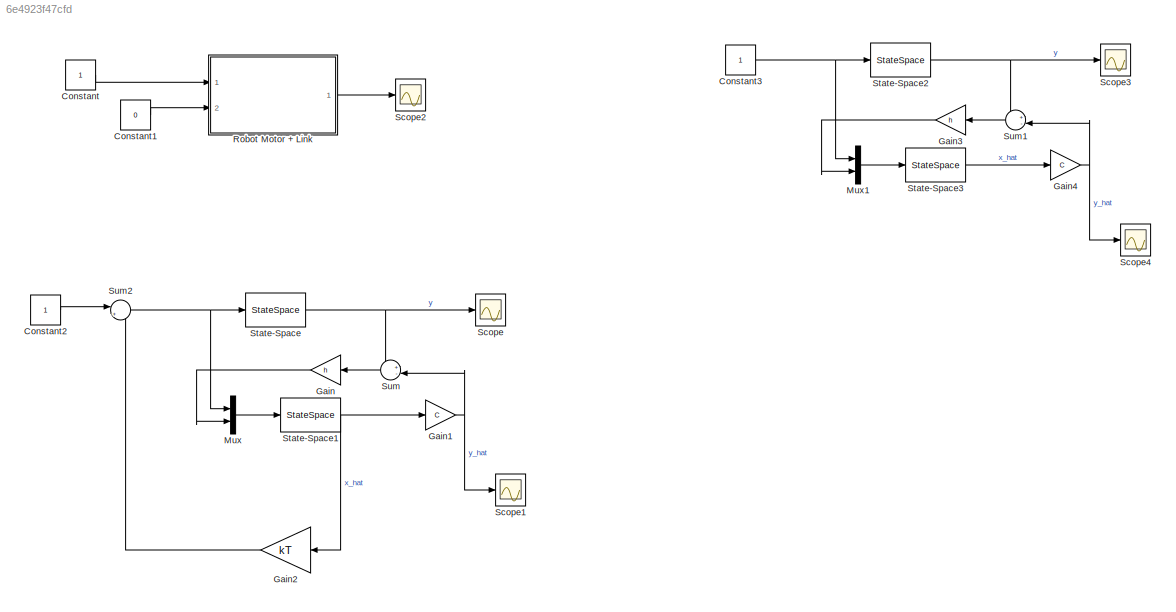
MODEL slx_6e4923f47cfd
KIND model
CONFIG AbsTol = auto
CONFIG EnableMultiTasking = off
CONFIG FixedStep = 0.001
CONFIG MaxStep = auto
CONFIG MinStep = auto
CONFIG RelTol = 1e-3
CONFIG SampleTimeConstraint = Unconstrained
CONFIG Solver = ode4
CONFIG SolverName = ode4
CONFIG StartTime = 0.0
CONFIG StopTime = 30
BLOCK [Constant] Constant
BLOCK [Constant] Constant1
  Value = 0
BLOCK [Constant] Constant2
BLOCK [Constant] Constant3
BLOCK [Gain] Gain
  Gain = h
  Multiplication = Matrix(K*u)
BLOCK [Gain] Gain1
  Gain = C
  Multiplication = Matrix(K*u)
BLOCK [Gain] Gain2
  Gain = kT
  Multiplication = Matrix(K*u)
BLOCK [Gain] Gain3
  Gain = h
  Multiplication = Matrix(K*u)
BLOCK [Gain] Gain4
  Gain = C
  Multiplication = Matrix(K*u)
BLOCK [Mux] Mux
  DisplayOption = bar
  Inputs = 2
  Ports = [2, 1]
BLOCK [Mux] Mux1
  DisplayOption = bar
  Inputs = 2
  Ports = [2, 1]
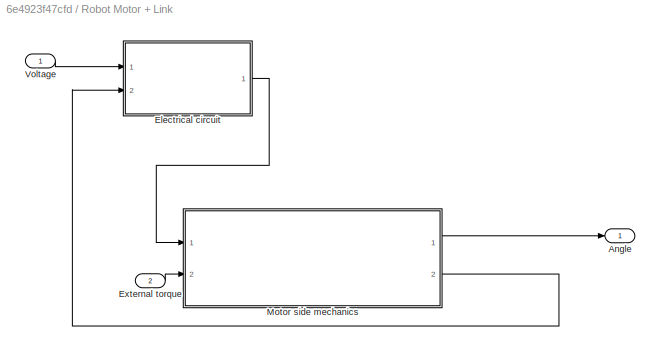
BLOCK [SubSystem] Robot Motor + Link
  Ports = [2, 1]
  RequestExecContextInheritance = off
BLOCK [Outport] Robot Motor + Link/Angle
  VectorParamsAs1DForOutWhenUnconnected = off
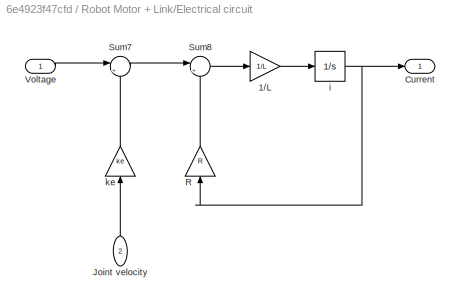
BLOCK [SubSystem] Robot Motor + Link/Electrical circuit
  Ports = [2, 1]
  RequestExecContextInheritance = off
BLOCK [Gain] Robot Motor + Link/Electrical circuit/1//L
  Gain = 1/L
BLOCK [Outport] Robot Motor + Link/Electrical circuit/Current
  VectorParamsAs1DForOutWhenUnconnected = off
BLOCK [Inport] Robot Motor + Link/Electrical circuit/Joint velocity
  NameLocation = right
  Port = 2
BLOCK [Gain] Robot Motor + Link/Electrical circuit/R
  Gain = R
  NameLocation = right
BLOCK [Sum] Robot Motor + Link/Electrical circuit/Sum7
  Inputs = |+-
  Ports = [2, 1]
BLOCK [Sum] Robot Motor + Link/Electrical circuit/Sum8
  Inputs = |+-
  Ports = [2, 1]
BLOCK [Inport] Robot Motor + Link/Electrical circuit/Voltage
BLOCK [Integrator] Robot Motor + Link/Electrical circuit/i
  Ports = [1, 1]
BLOCK [Gain] Robot Motor + Link/Electrical circuit/ke
  Gain = ke
  NameLocation = right
BLOCK [Inport] Robot Motor + Link/External torque
  Port = 2
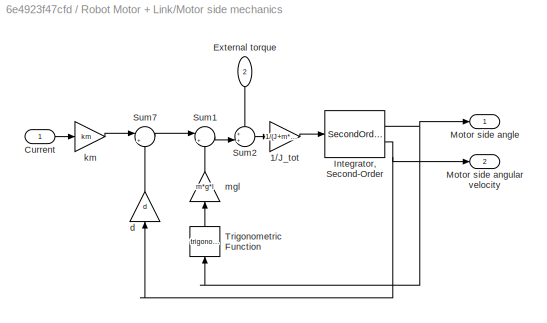
BLOCK [SubSystem] Robot Motor + Link/Motor side mechanics
  Ports = [2, 2]
  RequestExecContextInheritance = off
BLOCK [Gain] Robot Motor + Link/Motor side mechanics/1//J_tot
  Gain = 1/(J+m*l^2)
BLOCK [Inport] Robot Motor + Link/Motor side mechanics/Current
BLOCK [Inport] Robot Motor + Link/Motor side mechanics/External torque
  NameLocation = right
  Port = 2
BLOCK [SecondOrderIntegrator] Robot Motor + Link/Motor side mechanics/Integrator, Second-Order
  Ports = [1, 2]
BLOCK [Outport] Robot Motor + Link/Motor side mechanics/Motor side angle
  VectorParamsAs1DForOutWhenUnconnected = off
BLOCK [Outport] Robot Motor + Link/Motor side mechanics/Motor side angular velocity
  Port = 2
  VectorParamsAs1DForOutWhenUnconnected = off
BLOCK [Sum] Robot Motor + Link/Motor side mechanics/Sum1
  Inputs = |+-
  Ports = [2, 1]
BLOCK [Sum] Robot Motor + Link/Motor side mechanics/Sum2
  Inputs = ++|
  Ports = [2, 1]
BLOCK [Sum] Robot Motor + Link/Motor side mechanics/Sum7
  Inputs = |+-
  Ports = [2, 1]
BLOCK [Trigonometry] Robot Motor + Link/Motor side mechanics/Trigonometric Function
  NameLocation = right
  Ports = [1, 1]
BLOCK [Gain] Robot Motor + Link/Motor side mechanics/d
  Gain = d
  NameLocation = right
BLOCK [Gain] Robot Motor + Link/Motor side mechanics/km
  Gain = km
BLOCK [Gain] Robot Motor + Link/Motor side mechanics/mgl
  Gain = m*g*l
  NameLocation = right
BLOCK [Inport] Robot Motor + Link/Voltage
BLOCK [Scope] Scope
  Floating = off
  NumInputPorts = 1
  Ports = [1]
  ScopeSpecificationString = Simulink.scopes.TimeScopeBlockCfg('CurrentConfiguration', extmgr.ConfigurationSet(extmgr.Configuration('Core','General UI',true),extmgr.Configuration('Core','Source UI',true),extmgr.Configuration('Sources','WiredSimulink',true),extmgr.Configuration('Visuals','Time Domain',true,'SerializedDisplays',{struct('MinYLimReal','-0.01872','MaxYLimReal','0.16844','YLabelReal','','MinYLimMag','0.00000','MaxY...<+1350ch>
BLOCK [Scope] Scope1
  Floating = off
  NumInputPorts = 1
  Ports = [1]
  ScopeSpecificationString = Simulink.scopes.TimeScopeBlockCfg('CurrentConfiguration', extmgr.ConfigurationSet(extmgr.Configuration('Core','General UI',true),extmgr.Configuration('Core','Source UI',true),extmgr.Configuration('Sources','WiredSimulink',true,'DataLoggingVariableName','ScopeData1'),extmgr.Configuration('Visuals','Time Domain',true,'SerializedDisplays',{struct('MinYLimReal','-0.01872','MaxYLimReal','0.16844','YLab...<+1394ch>
BLOCK [Scope] Scope2
  Floating = off
  NumInputPorts = 1
  Ports = [1]
  ScopeSpecificationString = Simulink.scopes.TimeScopeBlockCfg('CurrentConfiguration', extmgr.ConfigurationSet(extmgr.Configuration('Core','General UI',true),extmgr.Configuration('Core','Source UI',true),extmgr.Configuration('Sources','WiredSimulink',true,'DataLoggingVariableName','ScopeData2'),extmgr.Configuration('Visuals','Time Domain',true,'SerializedDisplays',{struct('MinYLimReal','-0.10439','MaxYLimReal','0.93948','YLab...<+1377ch>
BLOCK [Scope] Scope3
  Floating = off
  NumInputPorts = 1
  Ports = [1]
  ScopeSpecificationString = Simulink.scopes.TimeScopeBlockCfg('CurrentConfiguration', extmgr.ConfigurationSet(extmgr.Configuration('Core','General UI',true),extmgr.Configuration('Core','Source UI',true),extmgr.Configuration('Sources','WiredSimulink',true,'DataLoggingVariableName','ScopeData3'),extmgr.Configuration('Visuals','Time Domain',true,'SerializedDisplays',{struct('MinYLimReal','-0.01872','MaxYLimReal','0.16844','YLab...<+1389ch>
BLOCK [Scope] Scope4
  Floating = off
  NumInputPorts = 1
  Ports = [1]
  ScopeSpecificationString = Simulink.scopes.TimeScopeBlockCfg('CurrentConfiguration', extmgr.ConfigurationSet(extmgr.Configuration('Core','General UI',true),extmgr.Configuration('Core','Source UI',true),extmgr.Configuration('Sources','WiredSimulink',true,'DataLoggingVariableName','ScopeData4'),extmgr.Configuration('Visuals','Time Domain',true,'SerializedDisplays',{struct('MinYLimReal','-0.01872','MaxYLimReal','0.16844','YLab...<+1394ch>
BLOCK [StateSpace] State-Space
  A = A
  B = B
  C = C
  D = D
  InitialCondition = [0;0;0]
  Ports = [1, 1]
BLOCK [StateSpace] State-Space1
  A = A
  B = [0 1 0 0;0 0 1 0;1/L 0 0 1];
  C = [1 0 0;0 1 0;0 0 1];
  D = [0 0 0 0;0 0 0 0;0 0 0 0];
  InitialCondition = [0;0;0]
  Ports = [1, 1]
BLOCK [StateSpace] State-Space2
  A = A
  B = B
  C = C
  D = D
  InitialCondition = [0;0;0]
  Ports = [1, 1]
BLOCK [StateSpace] State-Space3
  A = A
  B = [0 1 0 0;0 0 1 0;1/L 0 0 1];
  C = [1 0 0;0 1 0;0 0 1];
  D = [0 0 0 0;0 0 0 0;0 0 0 0];
  InitialCondition = [0;0;0]
  Ports = [1, 1]
BLOCK [Sum] Sum
  Inputs = +-|
  Ports = [2, 1]
BLOCK [Sum] Sum1
  Inputs = +-|
  Ports = [2, 1]
BLOCK [Sum] Sum2
  Inputs = |+-
  Ports = [2, 1]
LINE Constant1:1 -> Robot Motor + Link:2
LINE Constant2:1 -> Sum2:1
NET Constant3:1 -> Mux1:1, State-Space2:1
LINE Constant:1 -> Robot Motor + Link:1
NET Gain1:1 -> Scope1:1, Sum:2
LINE Gain2:1 -> Sum2:2
LINE Gain3:1 -> Mux1:2
NET Gain4:1 -> Scope4:1, Sum1:2
LINE Gain:1 -> Mux:2
LINE Mux1:1 -> State-Space3:1
LINE Mux:1 -> State-Space1:1
LINE Robot Motor + Link/Electrical circuit/1//L:1 -> Robot Motor + Link/Electrical circuit/i:1
LINE Robot Motor + Link/Electrical circuit/Joint velocity:1 -> Robot Motor + Link/Electrical circuit/ke:1
LINE Robot Motor + Link/Electrical circuit/R:1 -> Robot Motor + Link/Electrical circuit/Sum8:2
LINE Robot Motor + Link/Electrical circuit/Sum7:1 -> Robot Motor + Link/Electrical circuit/Sum8:1
LINE Robot Motor + Link/Electrical circuit/Sum8:1 -> Robot Motor + Link/Electrical circuit/1//L:1
LINE Robot Motor + Link/Electrical circuit/Voltage:1 -> Robot Motor + Link/Electrical circuit/Sum7:1
NET Robot Motor + Link/Electrical circuit/i:1 -> Robot Motor + Link/Electrical circuit/Current:1, Robot Motor + Link/Electrical circuit/R:1
LINE Robot Motor + Link/Electrical circuit/ke:1 -> Robot Motor + Link/Electrical circuit/Sum7:2
LINE Robot Motor + Link/Electrical circuit:1 -> Robot Motor + Link/Motor side mechanics:1
LINE Robot Motor + Link/External torque:1 -> Robot Motor + Link/Motor side mechanics:2
LINE Robot Motor + Link/Motor side mechanics/1//J_tot:1 -> Robot Motor + Link/Motor side mechanics/Integrator, Second-Order:1
LINE Robot Motor + Link/Motor side mechanics/Current:1 -> Robot Motor + Link/Motor side mechanics/km:1
LINE Robot Motor + Link/Motor side mechanics/External torque:1 -> Robot Motor + Link/Motor side mechanics/Sum2:1
NET Robot Motor + Link/Motor side mechanics/Integrator, Second-Order:1 -> Robot Motor + Link/Motor side mechanics/Motor side angle:1, Robot Motor + Link/Motor side mechanics/Trigonometric Function:1
NET Robot Motor + Link/Motor side mechanics/Integrator, Second-Order:2 -> Robot Motor + Link/Motor side mechanics/Motor side angular velocity:1, Robot Motor + Link/Motor side mechanics/d:1
LINE Robot Motor + Link/Motor side mechanics/Sum1:1 -> Robot Motor + Link/Motor side mechanics/Sum2:2
LINE Robot Motor + Link/Motor side mechanics/Sum2:1 -> Robot Motor + Link/Motor side mechanics/1//J_tot:1
LINE Robot Motor + Link/Motor side mechanics/Sum7:1 -> Robot Motor + Link/Motor side mechanics/Sum1:1
LINE Robot Motor + Link/Motor side mechanics/Trigonometric Function:1 -> Robot Motor + Link/Motor side mechanics/mgl:1
LINE Robot Motor + Link/Motor side mechanics/d:1 -> Robot Motor + Link/Motor side mechanics/Sum7:2
LINE Robot Motor + Link/Motor side mechanics/km:1 -> Robot Motor + Link/Motor side mechanics/Sum7:1
LINE Robot Motor + Link/Motor side mechanics/mgl:1 -> Robot Motor + Link/Motor side mechanics/Sum1:2
LINE Robot Motor + Link/Motor side mechanics:1 -> Robot Motor + Link/Angle:1
LINE Robot Motor + Link/Motor side mechanics:2 -> Robot Motor + Link/Electrical circuit:2
LINE Robot Motor + Link/Voltage:1 -> Robot Motor + Link/Electrical circuit:1
LINE Robot Motor + Link:1 -> Scope2:1
NET State-Space1:1 -> Gain1:1, Gain2:1
NET State-Space2:1 -> Scope3:1, Sum1:1
LINE State-Space3:1 -> Gain4:1
NET State-Space:1 -> Scope:1, Sum:1
LINE Sum1:1 -> Gain3:1
NET Sum2:1 -> Mux:1, State-Space:1
LINE Sum:1 -> Gain:1
note: NET lines group one-source signal fan-out (src -> all destinations, sorted); 1:1 wires keep LINE
